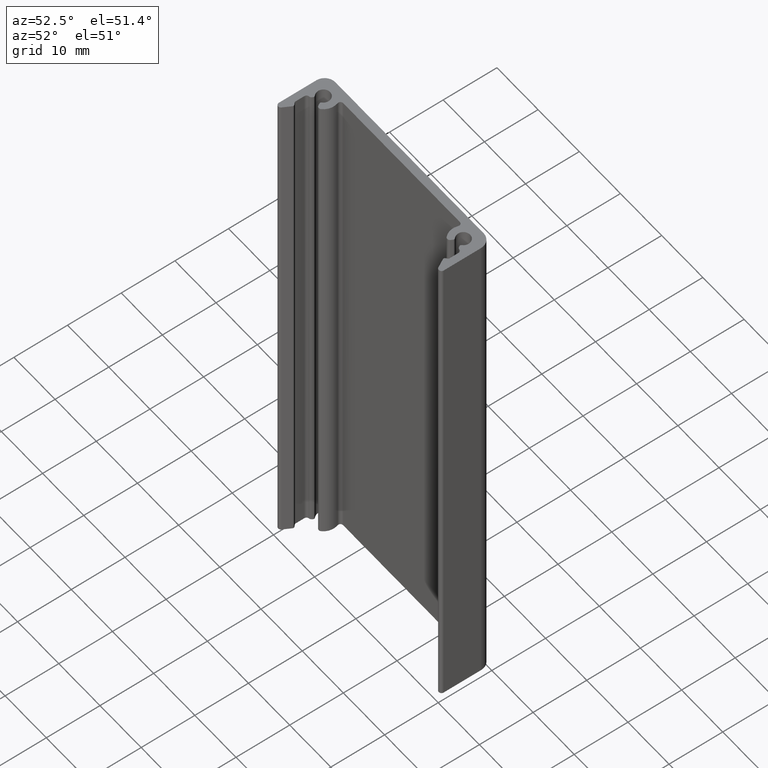
[diagram: clean part render]
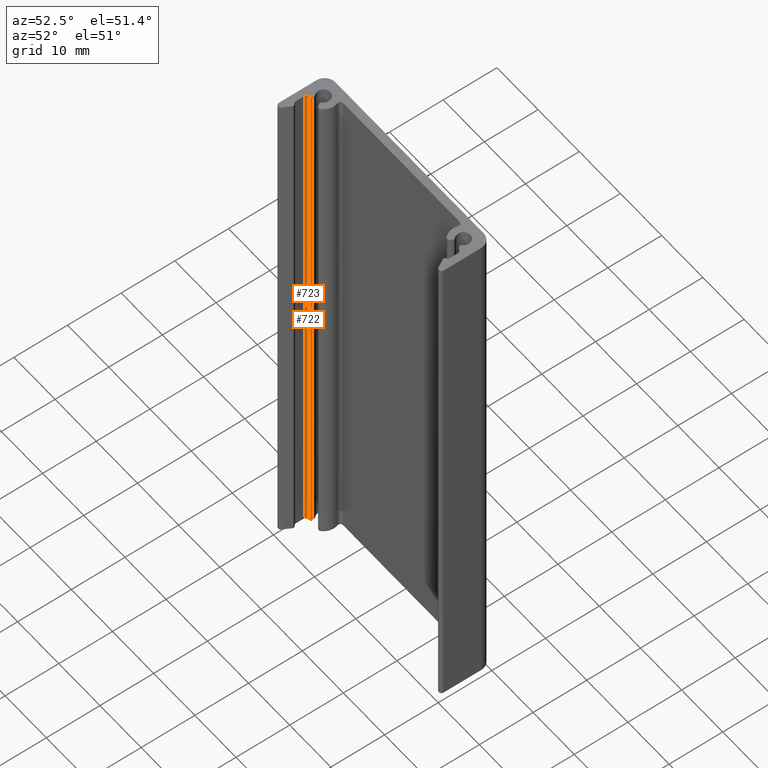
[diagram: same view with one multi-face feature highlighted, each face labeled with its STEP entity id]
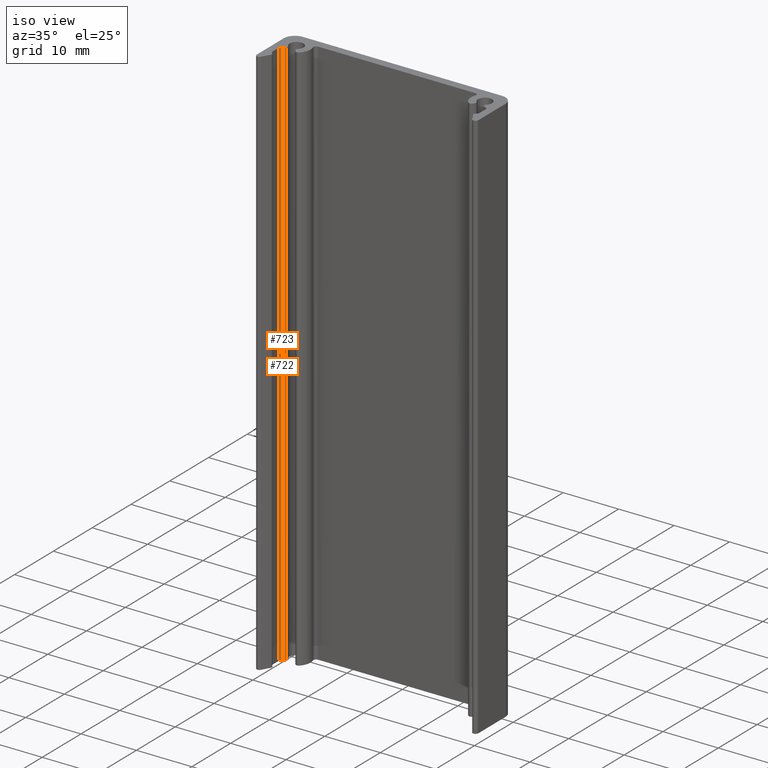
[diagram: same view with one multi-face feature highlighted, each face labeled with its STEP entity id]
A machine part, auxiliary view. The highlighted faces form ONE feature: a constant-radius fillet chain: 2 tangent blend faces with common blend radius 0.5 mm. The faces share edges in the B-rep.
A second angle (iso view) of the same feature is appended — it is thin or edge-on in the first view.
Their STEP definitions:
[1] entity #723 (Cylinder):
#57=FACE_OUTER_BOUND('',#95,.T.);
#95=EDGE_LOOP('',(#563,#564,#565,#566));
#151=LINE('',#1207,#215);
#152=LINE('',#1213,#216);
#215=VECTOR('',#983,100.);
#216=VECTOR('',#990,100.);
#269=CIRCLE('',#798,0.5);
#270=CIRCLE('',#799,0.5);
#331=VERTEX_POINT('',#1204);
#332=VERTEX_POINT('',#1206);
#333=VERTEX_POINT('',#1210);
#334=VERTEX_POINT('',#1212);
#428=EDGE_CURVE('',#331,#332,#151,.T.);
#430=EDGE_CURVE('',#333,#331,#269,.T.);
#431=EDGE_CURVE('',#333,#334,#152,.T.);
#432=EDGE_CURVE('',#332,#334,#270,.T.);
#563=ORIENTED_EDGE('',*,*,#430,.F.);
#564=ORIENTED_EDGE('',*,*,#431,.T.);
#565=ORIENTED_EDGE('',*,*,#432,.F.);
#566=ORIENTED_EDGE('',*,*,#428,.F.);
#692=CYLINDRICAL_SURFACE('',#797,0.5);
#723=ADVANCED_FACE('',(#57),#692,.F.);
#797=AXIS2_PLACEMENT_3D('',#1209,#986,#987);
#798=AXIS2_PLACEMENT_3D('',#1211,#988,#989);
#799=AXIS2_PLACEMENT_3D('',#1214,#991,#992);
#983=DIRECTION('',(0.,0.,-1.));
#986=DIRECTION('center_axis',(0.,0.,1.));
#987=DIRECTION('ref_axis',(-0.0885480772385483,0.996071904039742,0.));
#988=DIRECTION('center_axis',(0.,0.,-1.));
#989=DIRECTION('ref_axis',(-0.0885480772385483,0.996071904039742,0.));
#990=DIRECTION('',(0.,0.,-1.));
#991=DIRECTION('center_axis',(0.,0.,1.));
#992=DIRECTION('ref_axis',(-0.0885480772385483,0.996071904039742,0.));
#1204=CARTESIAN_POINT('',(-18.2442740386142,-4.72986668980975,100.));
#1206=CARTESIAN_POINT('',(-18.2442740386142,-4.72986668980975,0.));
#1207=CARTESIAN_POINT('',(-18.2442740386142,-4.72986668980975,0.));
#1209=CARTESIAN_POINT('Origin',(-18.199999999995,-5.22790264182962,0.));
#1210=CARTESIAN_POINT('',(-18.6999999999949,-5.22790264182962,100.));
#1211=CARTESIAN_POINT('Origin',(-18.199999999995,-5.22790264182962,100.));
#1212=CARTESIAN_POINT('',(-18.6999999999949,-5.22790264182962,0.));
#1213=CARTESIAN_POINT('',(-18.6999999999949,-5.22790264182962,0.));
#1214=CARTESIAN_POINT('Origin',(-18.199999999995,-5.22790264182962,0.));
[2] entity #722 (Cylinder):
#56=FACE_OUTER_BOUND('',#94,.T.);
#94=EDGE_LOOP('',(#559,#560,#561,#562));
#149=LINE('',#1201,#213);
#151=LINE('',#1207,#215);
#213=VECTOR('',#977,100.);
#215=VECTOR('',#983,100.);
#267=CIRCLE('',#795,0.5);
#268=CIRCLE('',#796,0.5);
#329=VERTEX_POINT('',#1198);
#330=VERTEX_POINT('',#1200);
#331=VERTEX_POINT('',#1204);
#332=VERTEX_POINT('',#1206);
#425=EDGE_CURVE('',#329,#330,#149,.T.);
#427=EDGE_CURVE('',#331,#329,#267,.T.);
#428=EDGE_CURVE('',#331,#332,#151,.T.);
#429=EDGE_CURVE('',#330,#332,#268,.T.);
#559=ORIENTED_EDGE('',*,*,#427,.F.);
#560=ORIENTED_EDGE('',*,*,#428,.T.);
#561=ORIENTED_EDGE('',*,*,#429,.F.);
#562=ORIENTED_EDGE('',*,*,#425,.F.);
#691=CYLINDRICAL_SURFACE('',#794,0.5);
#722=ADVANCED_FACE('',(#56),#691,.T.);
#794=AXIS2_PLACEMENT_3D('',#1203,#979,#980);
#795=AXIS2_PLACEMENT_3D('',#1205,#981,#982);
#796=AXIS2_PLACEMENT_3D('',#1208,#984,#985);
#977=DIRECTION('',(0.,0.,-1.));
#979=DIRECTION('center_axis',(0.,0.,1.));
#980=DIRECTION('ref_axis',(-0.0885480772385439,0.996071904039742,0.));
#981=DIRECTION('center_axis',(0.,0.,1.));
#982=DIRECTION('ref_axis',(-0.0885480772385439,0.996071904039742,0.));
#983=DIRECTION('',(0.,0.,-1.));
#984=DIRECTION('center_axis',(0.,0.,-1.));
#985=DIRECTION('ref_axis',(-0.0885480772385439,0.996071904039742,0.));
#1198=CARTESIAN_POINT('',(-17.8555353753412,-4.48183073778967,100.));
#1200=CARTESIAN_POINT('',(-17.8555353753412,-4.48183073778967,0.));
#1201=CARTESIAN_POINT('',(-17.8555353753412,-4.48183073778967,0.));
#1203=CARTESIAN_POINT('Origin',(-18.2885480772335,-4.23183073778988,0.));
#1204=CARTESIAN_POINT('',(-18.2442740386142,-4.72986668980975,100.));
#1205=CARTESIAN_POINT('Origin',(-18.2885480772335,-4.23183073778988,100.));
#1206=CARTESIAN_POINT('',(-18.2442740386142,-4.72986668980975,0.));
#1207=CARTESIAN_POINT('',(-18.2442740386142,-4.72986668980975,0.));
#1208=CARTESIAN_POINT('Origin',(-18.2885480772335,-4.23183073778988,0.));